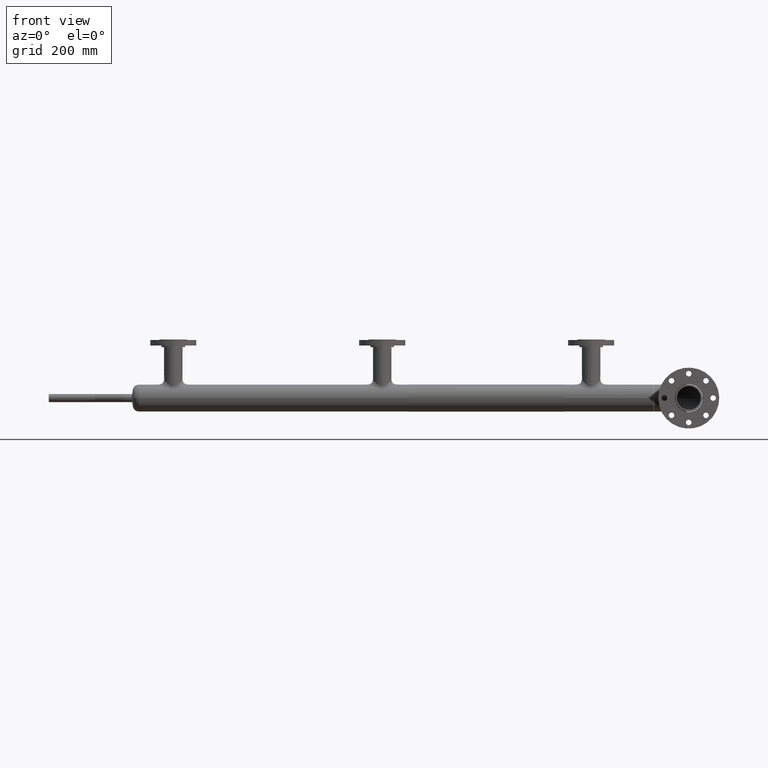
[diagram: clean part render]
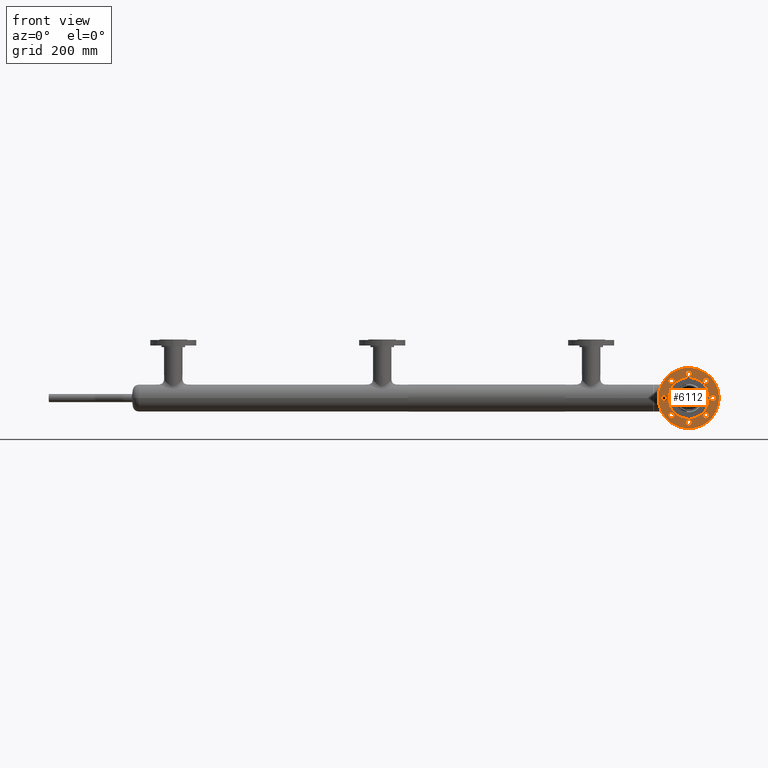
[diagram: same view with one face highlighted and labeled with its STEP entity id]
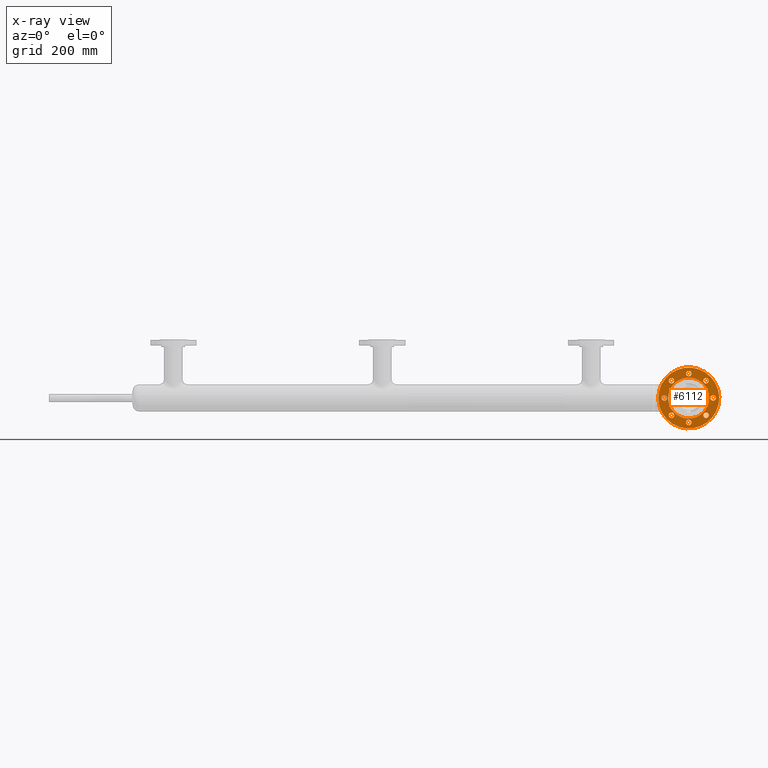
[diagram: x-ray of the same camera — body ghosted, the highlighted face saturated]
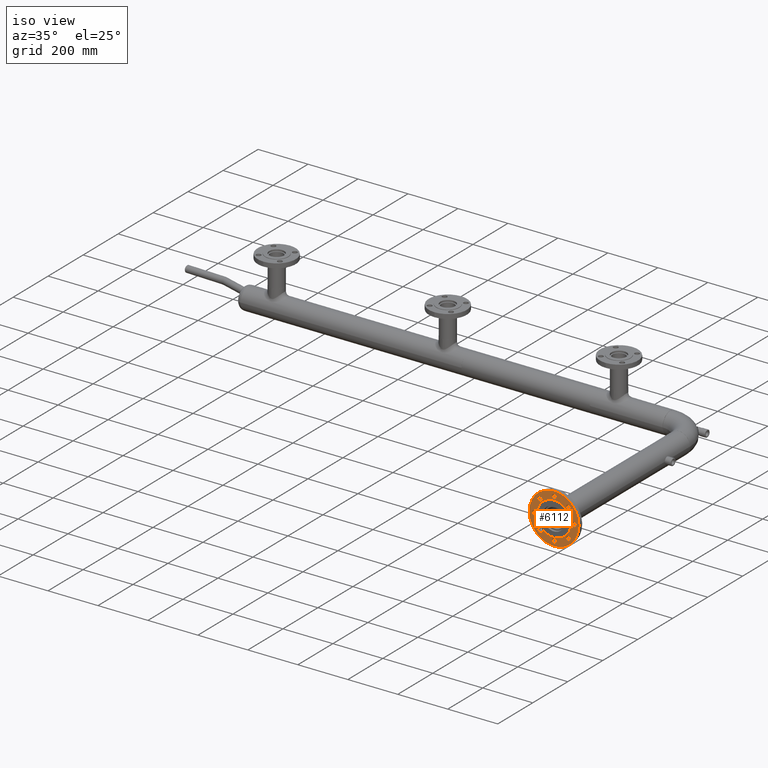
[diagram: same view with one face highlighted and labeled with its STEP entity id]
A machine part, front view. The second image highlights one B-rep face of the part: STEP entity #6112.
The next image is the same camera in x-ray: the body ghosted, the highlighted face saturated — about 0% of this face is hidden behind the body in this view.
A second angle (iso view) of the same face is appended — the face is thin or edge-on in the first view.
In plain terms, the highlighted planar face has unit normal (-0, 1, 0).
Its self-contained STEP definition (entity closure, byte-faithful):
#19 = DIRECTION ( 'NONE',  ( -5.916456789157616567E-31, -1.511161671564007746E-29, 1.000000000000000000 ) ) ;
#67 = ORIENTED_EDGE ( 'NONE', *, *, #3285, .F. ) ;
#77 = VERTEX_POINT ( 'NONE', #101 ) ;
#97 = AXIS2_PLACEMENT_3D ( 'NONE', #3325, #627, #691 ) ;
#101 = CARTESIAN_POINT ( 'NONE',  ( -21.61467458920734686, -73.91036260090288579, -2.000000000000001776 ) ) ;
#102 = ORIENTED_EDGE ( 'NONE', *, *, #2571, .F. ) ;
#189 = CARTESIAN_POINT ( 'NONE',  ( 0.000000000000000000, 0.000000000000000000, -2.000000000000001776 ) ) ;
#257 = CARTESIAN_POINT ( 'NONE',  ( 30.61467458920730422, 73.91036260090299947, -2.000000000000001776 ) ) ;
#265 = AXIS2_PLACEMENT_3D ( 'NONE', #5998, #3988, #2974 ) ;
#386 = ORIENTED_EDGE ( 'NONE', *, *, #6467, .F. ) ;
#425 = DIRECTION ( 'NONE',  ( -5.916456789157616567E-31, -1.511161671564007746E-29, 1.000000000000000000 ) ) ;
#440 = FACE_BOUND ( 'NONE', #1014, .T. ) ;
#485 = VERTEX_POINT ( 'NONE', #2828 ) ;
#508 = ORIENTED_EDGE ( 'NONE', *, *, #3246, .F. ) ;
#544 = CIRCLE ( 'NONE', #97, 9.000000000000012434 ) ;
#557 = CIRCLE ( 'NONE', #4471, 9.000000000000007105 ) ;
#627 = DIRECTION ( 'NONE',  ( -5.916456789157616567E-31, -1.511161671564007746E-29, 1.000000000000000000 ) ) ;
#640 = DIRECTION ( 'NONE',  ( -5.916456789157616567E-31, -1.511161671564007746E-29, 1.000000000000000000 ) ) ;
#691 = DIRECTION ( 'NONE',  ( -0.7071067811865416886, -0.7071067811865532349, 0.000000000000000000 ) ) ;
#708 = VERTEX_POINT ( 'NONE', #4079 ) ;
#755 = AXIS2_PLACEMENT_3D ( 'NONE', #4816, #6471, #3795 ) ;
#765 = AXIS2_PLACEMENT_3D ( 'NONE', #3207, #5731, #984 ) ;
#846 = DIRECTION ( 'NONE',  ( -1.000000000000000000, 0.000000000000000000, 8.381647117973250432E-31 ) ) ;
#889 = CIRCLE ( 'NONE', #1424, 67.50000000000000000 ) ;
#931 = EDGE_CURVE ( 'NONE', #4978, #5817, #1384, .T. ) ;
#954 = AXIS2_PLACEMENT_3D ( 'NONE', #1138, #6412, #3366 ) ;
#984 = DIRECTION ( 'NONE',  ( 0.7071067811865463515, 0.7071067811865486830, 0.000000000000000000 ) ) ;
#991 = AXIS2_PLACEMENT_3D ( 'NONE', #4004, #6577, #6075 ) ;
#1007 = CARTESIAN_POINT ( 'NONE',  ( 36.97863561988671677, -67.54640157022403457, -2.000000000000001776 ) ) ;
#1014 = EDGE_LOOP ( 'NONE', ( #1085, #2391 ) ) ;
#1016 = DIRECTION ( 'NONE',  ( -5.916456789157616567E-31, -1.511161671564007746E-29, 1.000000000000000000 ) ) ;
#1017 = AXIS2_PLACEMENT_3D ( 'NONE', #4459, #6120, #846 ) ;
#1085 = ORIENTED_EDGE ( 'NONE', *, *, #3871, .F. ) ;
#1112 = EDGE_LOOP ( 'NONE', ( #5295, #5565 ) ) ;
#1131 = EDGE_CURVE ( 'NONE', #6092, #4755, #4434, .T. ) ;
#1138 = CARTESIAN_POINT ( 'NONE',  ( -73.91036260090305632, 30.61467458920708040, -2.000000000000001776 ) ) ;
#1176 = CARTESIAN_POINT ( 'NONE',  ( 67.50000000000000000, 0.000000000000000000, -2.000000000000001776 ) ) ;
#1327 = EDGE_LOOP ( 'NONE', ( #386, #67 ) ) ;
#1365 = CARTESIAN_POINT ( 'NONE',  ( 73.91036260090267263, 30.61467458920807871, -2.000000000000001776 ) ) ;
#1373 = CARTESIAN_POINT ( 'NONE',  ( -100.0000000000000000, 1.224646799147364261E-14, -2.000000000000001776 ) ) ;
#1376 = EDGE_CURVE ( 'NONE', #4755, #6092, #4559, .T. ) ;
#1384 = CIRCLE ( 'NONE', #6069, 100.0000000000000000 ) ;
#1424 = AXIS2_PLACEMENT_3D ( 'NONE', #189, #5303, #2263 ) ;
#1476 = AXIS2_PLACEMENT_3D ( 'NONE', #6265, #425, #3664 ) ;
#1507 = VERTEX_POINT ( 'NONE', #4626 ) ;
#1518 = CIRCLE ( 'NONE', #5556, 9.000000000000014211 ) ;
#1535 = VERTEX_POINT ( 'NONE', #6052 ) ;
#1545 = CARTESIAN_POINT ( 'NONE',  ( -67.54640157022386404, -36.97863561988620518, -2.000000000000001776 ) ) ;
#1551 = CARTESIAN_POINT ( 'NONE',  ( 0.000000000000000000, 0.000000000000000000, -2.000000000000001776 ) ) ;
#1708 = CARTESIAN_POINT ( 'NONE',  ( 100.0000000000000000, 0.000000000000000000, -2.000000000000001776 ) ) ;
#1754 = CIRCLE ( 'NONE', #6204, 9.000000000000012434 ) ;
#1776 = EDGE_CURVE ( 'NONE', #2521, #708, #2269, .T. ) ;
#1940 = AXIS2_PLACEMENT_3D ( 'NONE', #4456, #5900, #5455 ) ;
#1966 = FACE_BOUND ( 'NONE', #3494, .T. ) ;
#1969 = ORIENTED_EDGE ( 'NONE', *, *, #4413, .F. ) ;
#1995 = DIRECTION ( 'NONE',  ( -5.916456789157616567E-31, -1.511161671564007746E-29, 1.000000000000000000 ) ) ;
#2062 = DIRECTION ( 'NONE',  ( -0.7071067811865515695, 0.7071067811865435759, 0.000000000000000000 ) ) ;
#2072 = ORIENTED_EDGE ( 'NONE', *, *, #3652, .F. ) ;
#2129 = CARTESIAN_POINT ( 'NONE',  ( 80.27432363158168016, 24.25071355852922039, -2.000000000000001776 ) ) ;
#2164 = CIRCLE ( 'NONE', #5982, 9.000000000000007105 ) ;
#2166 = DIRECTION ( 'NONE',  ( 1.000000000000000000, 0.000000000000000000, 0.000000000000000000 ) ) ;
#2263 = DIRECTION ( 'NONE',  ( 1.000000000000000000, 0.000000000000000000, 0.000000000000000000 ) ) ;
#2265 = ORIENTED_EDGE ( 'NONE', *, *, #2856, .F. ) ;
#2269 = CIRCLE ( 'NONE', #4342, 9.000000000000014211 ) ;
#2315 = CARTESIAN_POINT ( 'NONE',  ( 73.91036260090329790, -21.61467458920673579, -2.000000000000001776 ) ) ;
#2318 = CARTESIAN_POINT ( 'NONE',  ( 73.91036260090338317, -30.61467458920674645, -2.000000000000001776 ) ) ;
#2382 = PLANE ( 'NONE',  #1017 ) ;
#2391 = ORIENTED_EDGE ( 'NONE', *, *, #1776, .F. ) ;
#2421 = ORIENTED_EDGE ( 'NONE', *, *, #931, .T. ) ;
#2503 = CIRCLE ( 'NONE', #755, 9.000000000000007105 ) ;
#2513 = DIRECTION ( 'NONE',  ( -0.7071067811865416886, -0.7071067811865532349, 0.000000000000000000 ) ) ;
#2521 = VERTEX_POINT ( 'NONE', #1545 ) ;
#2571 = EDGE_CURVE ( 'NONE', #4840, #485, #2503, .T. ) ;
#2631 = EDGE_LOOP ( 'NONE', ( #5986, #1969 ) ) ;
#2694 = EDGE_CURVE ( 'NONE', #485, #4840, #2164, .T. ) ;
#2696 = EDGE_CURVE ( 'NONE', #4247, #3841, #544, .T. ) ;
#2733 = EDGE_LOOP ( 'NONE', ( #6707, #4184 ) ) ;
#2756 = DIRECTION ( 'NONE',  ( 0.7071067811865463515, 0.7071067811865486830, 0.000000000000000000 ) ) ;
#2828 = CARTESIAN_POINT ( 'NONE',  ( 39.61467458920731133, 73.91036260090299947, -2.000000000000001776 ) ) ;
#2835 = CARTESIAN_POINT ( 'NONE',  ( 30.61467458920780160, -73.91036260090299947, -2.000000000000001776 ) ) ;
#2842 = CIRCLE ( 'NONE', #6629, 9.000000000000014211 ) ;
#2856 = EDGE_CURVE ( 'NONE', #4120, #1507, #3480, .T. ) ;
#2974 = DIRECTION ( 'NONE',  ( 1.000000000000000000, 0.000000000000000000, 0.000000000000000000 ) ) ;
#2990 = EDGE_LOOP ( 'NONE', ( #2421, #5916 ) ) ;
#3108 = DIRECTION ( 'NONE',  ( 1.000000000000000000, 0.000000000000000000, 0.000000000000000000 ) ) ;
#3207 = CARTESIAN_POINT ( 'NONE',  ( -30.61467458920724738, 73.91036260090288579, -2.000000000000001776 ) ) ;
#3246 = EDGE_CURVE ( 'NONE', #1507, #4120, #1518, .T. ) ;
#3255 = DIRECTION ( 'NONE',  ( -5.916456789157616567E-31, -1.511161671564007746E-29, 1.000000000000000000 ) ) ;
#3285 = EDGE_CURVE ( 'NONE', #5038, #4068, #5122, .T. ) ;
#3325 = CARTESIAN_POINT ( 'NONE',  ( 30.61467458920780160, -73.91036260090299947, -2.000000000000001776 ) ) ;
#3366 = DIRECTION ( 'NONE',  ( -3.083952846180988111E-15, 1.000000000000000000, 0.000000000000000000 ) ) ;
#3411 = DIRECTION ( 'NONE',  ( -5.916456789157616567E-31, -1.511161671564007746E-29, 1.000000000000000000 ) ) ;
#3424 = AXIS2_PLACEMENT_3D ( 'NONE', #5382, #640, #2756 ) ;
#3440 = FACE_BOUND ( 'NONE', #1112, .T. ) ;
#3467 = DIRECTION ( 'NONE',  ( 1.079383496163345760E-14, -1.000000000000000000, 0.000000000000000000 ) ) ;
#3480 = CIRCLE ( 'NONE', #3923, 9.000000000000014211 ) ;
#3494 = EDGE_LOOP ( 'NONE', ( #6067, #102 ) ) ;
#3500 = EDGE_CURVE ( 'NONE', #6499, #6516, #6514, .T. ) ;
#3508 = FACE_BOUND ( 'NONE', #5024, .T. ) ;
#3652 = EDGE_CURVE ( 'NONE', #1535, #5227, #3717, .T. ) ;
#3664 = DIRECTION ( 'NONE',  ( -1.000000000000000000, 0.000000000000000000, 0.000000000000000000 ) ) ;
#3694 = CARTESIAN_POINT ( 'NONE',  ( -73.91036260090302790, 21.61467458920706974, -2.000000000000001776 ) ) ;
#3717 = CIRCLE ( 'NONE', #4136, 9.000000000000007105 ) ;
#3783 = CARTESIAN_POINT ( 'NONE',  ( -73.91036260090308474, 39.61467458920709106, -2.000000000000001776 ) ) ;
#3795 = DIRECTION ( 'NONE',  ( 1.000000000000000000, 0.000000000000000000, 0.000000000000000000 ) ) ;
#3813 = CIRCLE ( 'NONE', #991, 9.000000000000007105 ) ;
#3841 = VERTEX_POINT ( 'NONE', #1007 ) ;
#3871 = EDGE_CURVE ( 'NONE', #708, #2521, #2842, .T. ) ;
#3886 = CIRCLE ( 'NONE', #1476, 9.000000000000007105 ) ;
#3923 = AXIS2_PLACEMENT_3D ( 'NONE', #1365, #4033, #6572 ) ;
#3924 = FACE_BOUND ( 'NONE', #2733, .T. ) ;
#3982 = CARTESIAN_POINT ( 'NONE',  ( 73.91036260090338317, -30.61467458920674645, -2.000000000000001776 ) ) ;
#3988 = DIRECTION ( 'NONE',  ( -5.916456789157616567E-31, -1.511161671564007746E-29, 1.000000000000000000 ) ) ;
#3991 = EDGE_CURVE ( 'NONE', #3841, #4247, #1754, .T. ) ;
#4004 = CARTESIAN_POINT ( 'NONE',  ( -30.61467458920735751, -73.91036260090311316, -2.000000000000001776 ) ) ;
#4030 = EDGE_LOOP ( 'NONE', ( #2265, #508 ) ) ;
#4033 = DIRECTION ( 'NONE',  ( -5.916456789157616567E-31, -1.511161671564007746E-29, 1.000000000000000000 ) ) ;
#4050 = FACE_BOUND ( 'NONE', #1327, .T. ) ;
#4054 = EDGE_CURVE ( 'NONE', #5227, #1535, #557, .T. ) ;
#4068 = VERTEX_POINT ( 'NONE', #5428 ) ;
#4079 = CARTESIAN_POINT ( 'NONE',  ( -80.27432363158180806, -24.25071355852839972, -2.000000000000001776 ) ) ;
#4120 = VERTEX_POINT ( 'NONE', #2129 ) ;
#4136 = AXIS2_PLACEMENT_3D ( 'NONE', #3982, #5032, #3467 ) ;
#4142 = DIRECTION ( 'NONE',  ( -0.7071067811865515695, 0.7071067811865435759, 0.000000000000000000 ) ) ;
#4184 = ORIENTED_EDGE ( 'NONE', *, *, #3991, .F. ) ;
#4247 = VERTEX_POINT ( 'NONE', #5649 ) ;
#4312 = VERTEX_POINT ( 'NONE', #4819 ) ;
#4319 = CARTESIAN_POINT ( 'NONE',  ( -67.50000000000000000, 8.266365894244611456E-15, -2.000000000000001776 ) ) ;
#4342 = AXIS2_PLACEMENT_3D ( 'NONE', #4660, #5688, #4142 ) ;
#4413 = EDGE_CURVE ( 'NONE', #6516, #6499, #889, .T. ) ;
#4434 = CIRCLE ( 'NONE', #954, 9.000000000000007105 ) ;
#4456 = CARTESIAN_POINT ( 'NONE',  ( -73.91036260090305632, 30.61467458920708040, -2.000000000000001776 ) ) ;
#4459 = CARTESIAN_POINT ( 'NONE',  ( 5.551115123125782702E-14, 67.50000000000000000, -2.000000000000001776 ) ) ;
#4471 = AXIS2_PLACEMENT_3D ( 'NONE', #2318, #1995, #4874 ) ;
#4495 = FACE_OUTER_BOUND ( 'NONE', #2990, .T. ) ;
#4499 = CIRCLE ( 'NONE', #265, 100.0000000000000000 ) ;
#4559 = CIRCLE ( 'NONE', #1940, 9.000000000000007105 ) ;
#4626 = CARTESIAN_POINT ( 'NONE',  ( 67.54640157022356561, 36.97863561988685177, -2.000000000000001776 ) ) ;
#4659 = EDGE_CURVE ( 'NONE', #4312, #77, #3813, .T. ) ;
#4660 = CARTESIAN_POINT ( 'NONE',  ( -73.91036260090282894, -30.61467458920730422, -2.000000000000001776 ) ) ;
#4755 = VERTEX_POINT ( 'NONE', #3694 ) ;
#4811 = EDGE_CURVE ( 'NONE', #77, #4312, #3886, .T. ) ;
#4816 = CARTESIAN_POINT ( 'NONE',  ( 30.61467458920730422, 73.91036260090299947, -2.000000000000001776 ) ) ;
#4819 = CARTESIAN_POINT ( 'NONE',  ( -39.61467458920736817, -73.91036260090311316, -2.000000000000001776 ) ) ;
#4840 = VERTEX_POINT ( 'NONE', #5708 ) ;
#4874 = DIRECTION ( 'NONE',  ( 1.079383496163345760E-14, -1.000000000000000000, 0.000000000000000000 ) ) ;
#4978 = VERTEX_POINT ( 'NONE', #1708 ) ;
#5012 = ORIENTED_EDGE ( 'NONE', *, *, #4054, .F. ) ;
#5024 = EDGE_LOOP ( 'NONE', ( #6035, #5530 ) ) ;
#5032 = DIRECTION ( 'NONE',  ( -5.916456789157616567E-31, -1.511161671564007746E-29, 1.000000000000000000 ) ) ;
#5038 = VERTEX_POINT ( 'NONE', #6497 ) ;
#5046 = EDGE_LOOP ( 'NONE', ( #2072, #5012 ) ) ;
#5076 = CARTESIAN_POINT ( 'NONE',  ( 73.91036260090267263, 30.61467458920807871, -2.000000000000001776 ) ) ;
#5104 = FACE_BOUND ( 'NONE', #2631, .T. ) ;
#5122 = CIRCLE ( 'NONE', #765, 9.000000000000012434 ) ;
#5206 = CARTESIAN_POINT ( 'NONE',  ( -73.91036260090282894, -30.61467458920730422, -2.000000000000001776 ) ) ;
#5227 = VERTEX_POINT ( 'NONE', #2315 ) ;
#5237 = DIRECTION ( 'NONE',  ( -5.916456789157616567E-31, -1.511161671564007746E-29, 1.000000000000000000 ) ) ;
#5295 = ORIENTED_EDGE ( 'NONE', *, *, #1131, .F. ) ;
#5303 = DIRECTION ( 'NONE',  ( -5.916456789157616567E-31, -1.511161671564007746E-29, 1.000000000000000000 ) ) ;
#5339 = AXIS2_PLACEMENT_3D ( 'NONE', #5694, #1016, #3108 ) ;
#5382 = CARTESIAN_POINT ( 'NONE',  ( -30.61467458920724738, 73.91036260090288579, -2.000000000000001776 ) ) ;
#5428 = CARTESIAN_POINT ( 'NONE',  ( -24.25071355852832156, 80.27432363158183648, -2.000000000000001776 ) ) ;
#5455 = DIRECTION ( 'NONE',  ( -3.083952846180988111E-15, 1.000000000000000000, 0.000000000000000000 ) ) ;
#5521 = FACE_BOUND ( 'NONE', #4030, .T. ) ;
#5530 = ORIENTED_EDGE ( 'NONE', *, *, #4811, .F. ) ;
#5556 = AXIS2_PLACEMENT_3D ( 'NONE', #5076, #3411, #6625 ) ;
#5565 = ORIENTED_EDGE ( 'NONE', *, *, #1376, .F. ) ;
#5599 = CIRCLE ( 'NONE', #3424, 9.000000000000012434 ) ;
#5649 = CARTESIAN_POINT ( 'NONE',  ( 24.25071355852891841, -80.27432363158199280, -2.000000000000001776 ) ) ;
#5688 = DIRECTION ( 'NONE',  ( -5.916456789157616567E-31, -1.511161671564007746E-29, 1.000000000000000000 ) ) ;
#5694 = CARTESIAN_POINT ( 'NONE',  ( 0.000000000000000000, 0.000000000000000000, -2.000000000000001776 ) ) ;
#5708 = CARTESIAN_POINT ( 'NONE',  ( 21.61467458920728646, 73.91036260090311316, -2.000000000000001776 ) ) ;
#5731 = DIRECTION ( 'NONE',  ( -5.916456789157616567E-31, -1.511161671564007746E-29, 1.000000000000000000 ) ) ;
#5817 = VERTEX_POINT ( 'NONE', #1373 ) ;
#5900 = DIRECTION ( 'NONE',  ( -5.916456789157616567E-31, -1.511161671564007746E-29, 1.000000000000000000 ) ) ;
#5916 = ORIENTED_EDGE ( 'NONE', *, *, #6180, .T. ) ;
#5982 = AXIS2_PLACEMENT_3D ( 'NONE', #257, #3255, #6367 ) ;
#5986 = ORIENTED_EDGE ( 'NONE', *, *, #3500, .F. ) ;
#5998 = CARTESIAN_POINT ( 'NONE',  ( 0.000000000000000000, 0.000000000000000000, -2.000000000000001776 ) ) ;
#6027 = DIRECTION ( 'NONE',  ( -5.916456789157616567E-31, -1.511161671564007746E-29, 1.000000000000000000 ) ) ;
#6035 = ORIENTED_EDGE ( 'NONE', *, *, #4659, .F. ) ;
#6052 = CARTESIAN_POINT ( 'NONE',  ( 73.91036260090348264, -39.61467458920675710, -2.000000000000001776 ) ) ;
#6067 = ORIENTED_EDGE ( 'NONE', *, *, #2694, .F. ) ;
#6069 = AXIS2_PLACEMENT_3D ( 'NONE', #1551, #19, #2166 ) ;
#6075 = DIRECTION ( 'NONE',  ( -1.000000000000000000, 0.000000000000000000, 0.000000000000000000 ) ) ;
#6092 = VERTEX_POINT ( 'NONE', #3783 ) ;
#6112 = ADVANCED_FACE ( 'NONE', ( #4050, #3440, #440, #3508, #3924, #6623, #5521, #1966, #5104, #4495 ), #2382, .F. ) ;
#6120 = DIRECTION ( 'NONE',  ( -8.381647117973250432E-31, 1.511161671564007746E-29, -1.000000000000000000 ) ) ;
#6180 = EDGE_CURVE ( 'NONE', #5817, #4978, #4499, .T. ) ;
#6204 = AXIS2_PLACEMENT_3D ( 'NONE', #2835, #6027, #2513 ) ;
#6265 = CARTESIAN_POINT ( 'NONE',  ( -30.61467458920735751, -73.91036260090311316, -2.000000000000001776 ) ) ;
#6367 = DIRECTION ( 'NONE',  ( 1.000000000000000000, 0.000000000000000000, 0.000000000000000000 ) ) ;
#6412 = DIRECTION ( 'NONE',  ( -5.916456789157616567E-31, -1.511161671564007746E-29, 1.000000000000000000 ) ) ;
#6467 = EDGE_CURVE ( 'NONE', #4068, #5038, #5599, .T. ) ;
#6471 = DIRECTION ( 'NONE',  ( -5.916456789157616567E-31, -1.511161671564007746E-29, 1.000000000000000000 ) ) ;
#6497 = CARTESIAN_POINT ( 'NONE',  ( -36.97863561988616965, 67.54640157022394931, -2.000000000000001776 ) ) ;
#6499 = VERTEX_POINT ( 'NONE', #1176 ) ;
#6514 = CIRCLE ( 'NONE', #5339, 67.50000000000000000 ) ;
#6516 = VERTEX_POINT ( 'NONE', #4319 ) ;
#6572 = DIRECTION ( 'NONE',  ( 0.7071067811865562325, -0.7071067811865389130, 0.000000000000000000 ) ) ;
#6577 = DIRECTION ( 'NONE',  ( -5.916456789157616567E-31, -1.511161671564007746E-29, 1.000000000000000000 ) ) ;
#6623 = FACE_BOUND ( 'NONE', #5046, .T. ) ;
#6625 = DIRECTION ( 'NONE',  ( 0.7071067811865562325, -0.7071067811865389130, 0.000000000000000000 ) ) ;
#6629 = AXIS2_PLACEMENT_3D ( 'NONE', #5206, #5237, #2062 ) ;
#6707 = ORIENTED_EDGE ( 'NONE', *, *, #2696, .F. ) ;